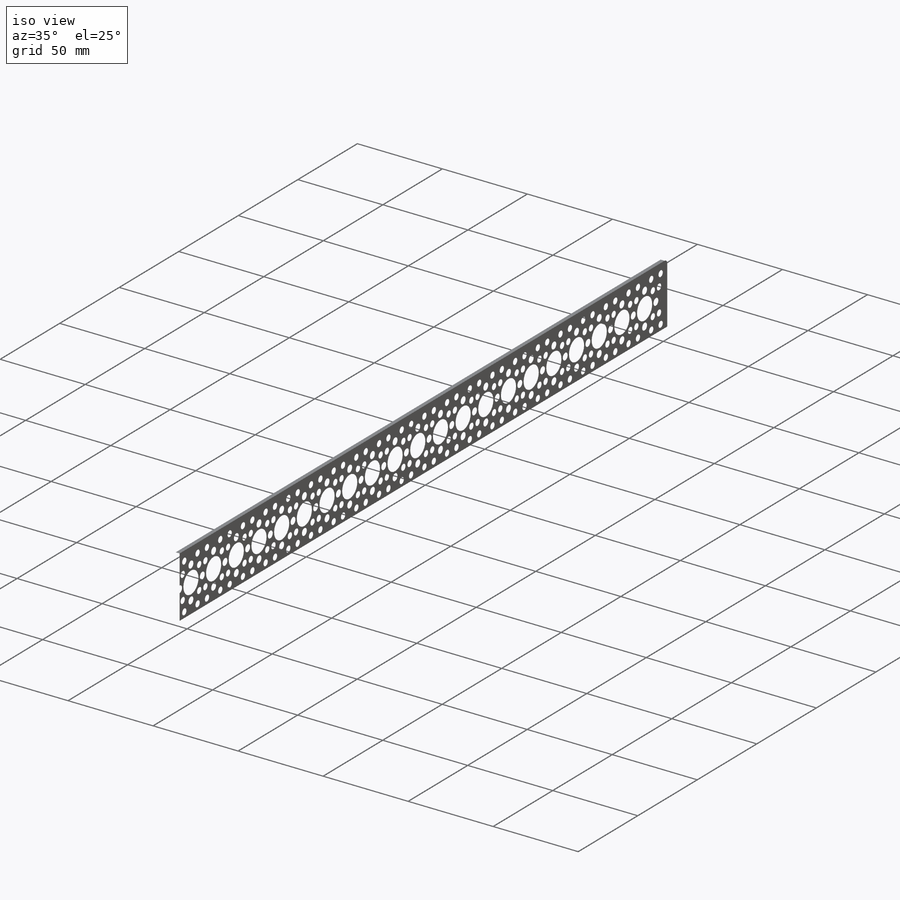
[diagram: iso view]
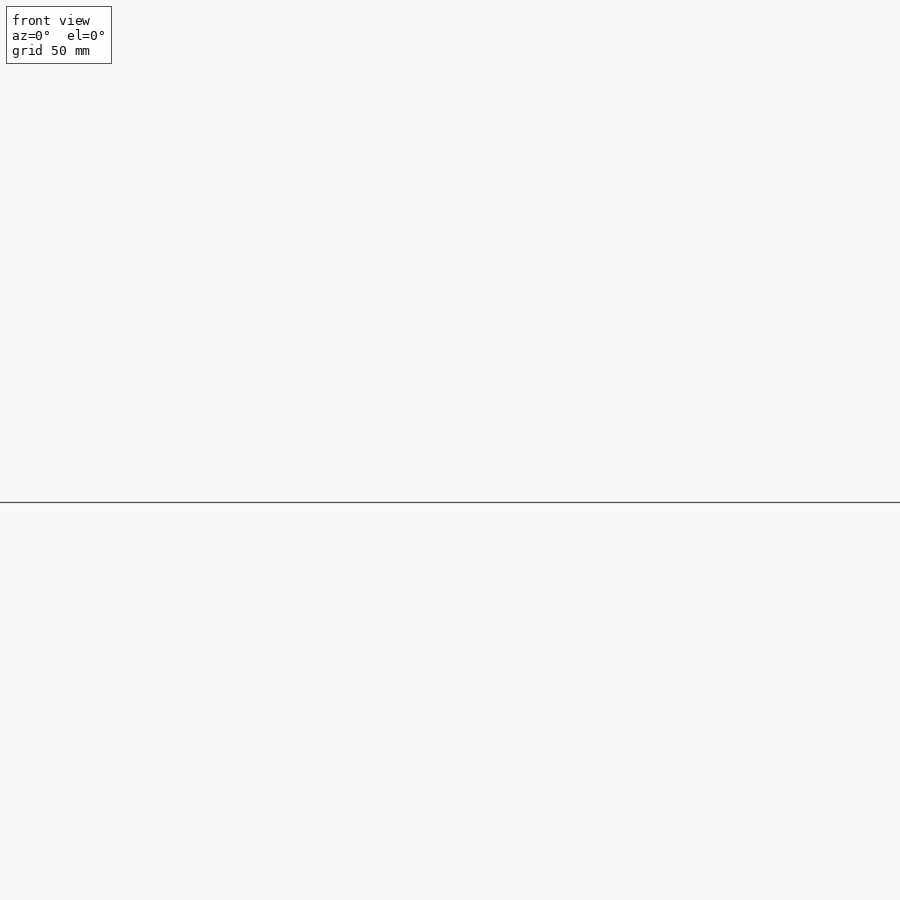
[diagram: front view]
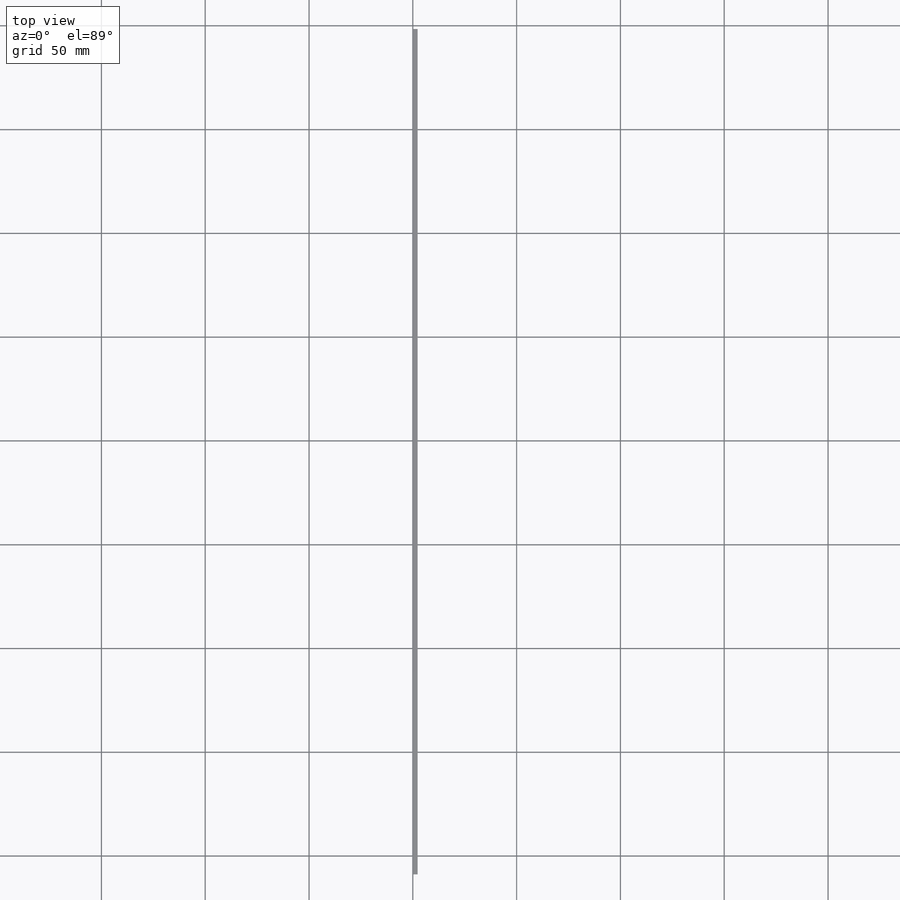
[diagram: top view]
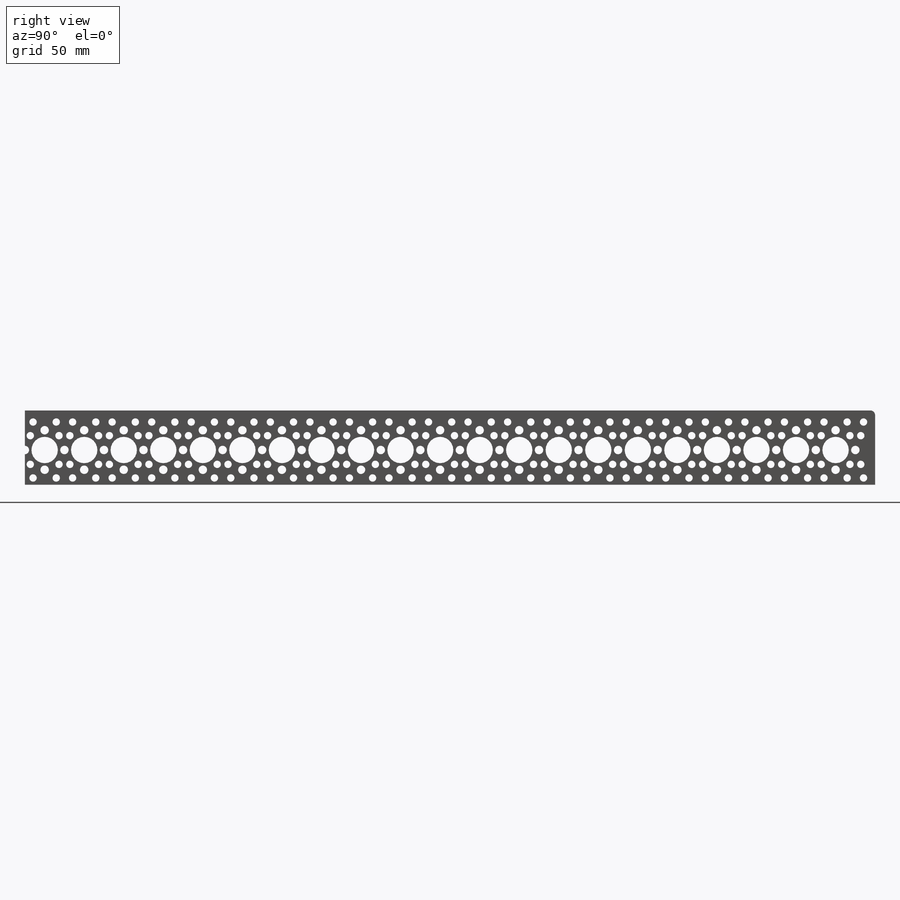
[diagram: right view]
SOLIDWORKS PART (.sldprt)
format: sldprt  version: not decoded by parser v0  size: 1,671,680 bytes
history: native  units: mm
features: sketch x4, cut_extrude x3, material x1, fillet x1 (+13 scaffold rows collapsed)
feature tree (22):
  scaffold x13  (default folders/planes/origin — collapsed)
  material  "Material <not specified>"
  sketch  "Sketch1"  dims[D1=609.6mm D5=2.286mm D6=1.0mm D7=5.0mm]
  sketch  "Sketch3"  dims[c1.D1=12.7mm c1.D3=4.064mm c1.D6=3.556mm c1.D7=3.556mm c1.D2=9.525mm c1.D4=19.05mm c1.D5=9.779mm c2.D1=12.7mm c2.D4=4.064mm c2.D2=19.05mm c2.D3=9.525mm c3.D1=19.05mm c3.D2=38.1mm c3.D3=5.588mm c3.D4=19.05mm c3.D5=38.1mm c3.D6=~5.571232mm]
  cut_extrude  "Cut-Extrude1"  [1 undecoded]
  sketch  "Sketch4"  dims[D1=19.05mm D2=38.1mm D3=~5.579616mm D4=19.05mm D5=38.1mm D6=19.05mm D7=38.1mm D8=19.05mm]
  cut_extrude  "Cut-Extrude2"  [1 undecoded]
  fillet  "Fillet1"  Radius=2.286mm
  sketch  "Sketch6"
  cut_extrude  "Cut-Extrude3"  Depth=62.23mm
decode coverage: 5 of 8 modeling features carry decoded parameters
note: ~ marks probable driven/reference dimensions
note: 2 parameter values undecoded
note: suppression state not decoded; provenance and decode notes live in map.json
